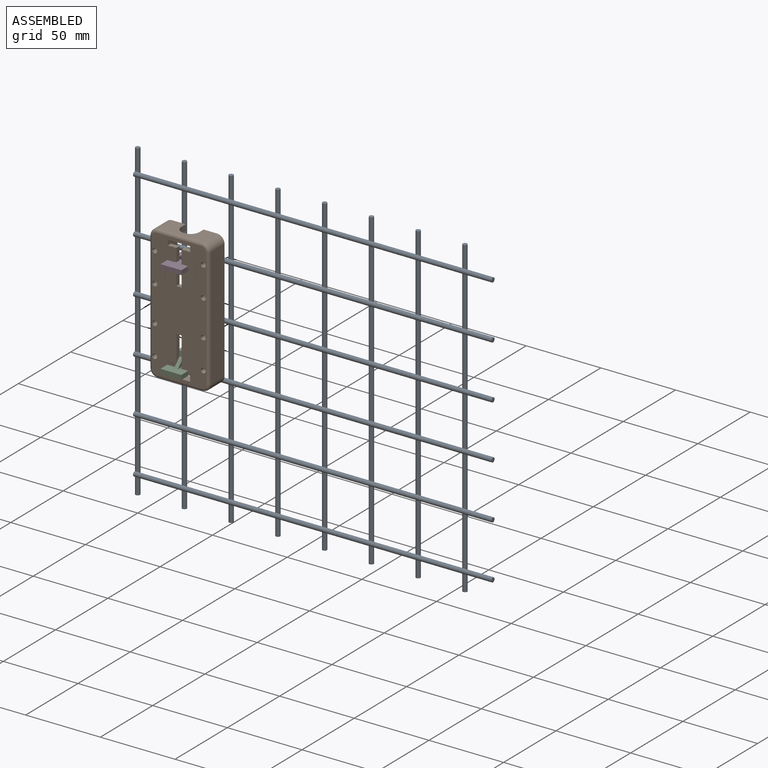
[diagram: assembled view]
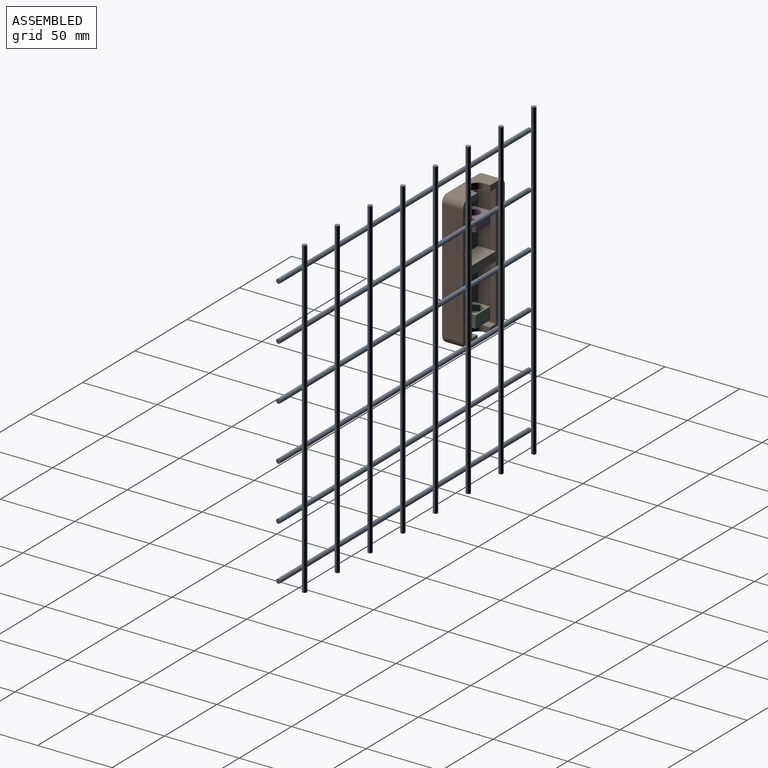
[diagram: assembled view, second angle]
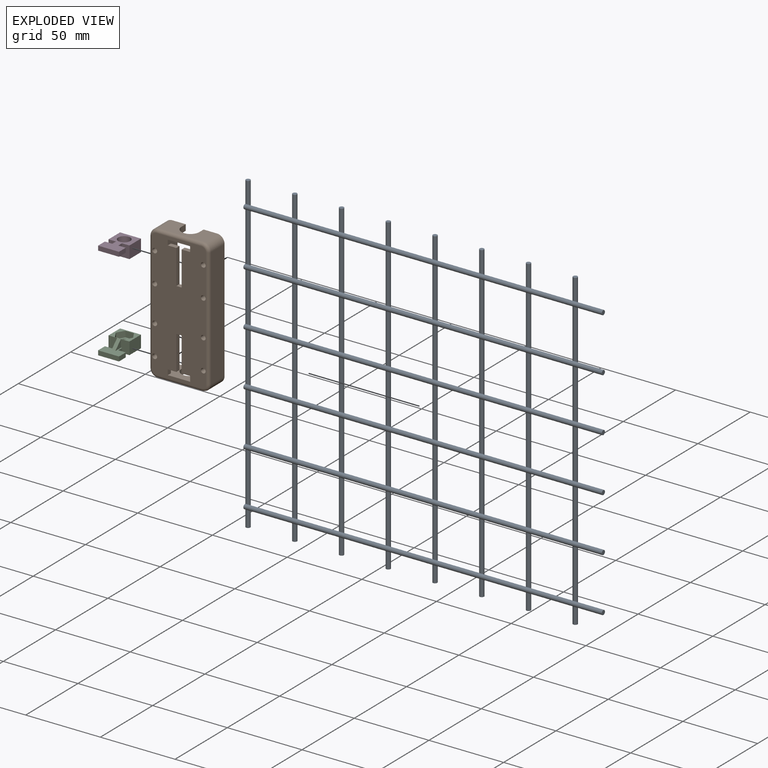
[diagram: exploded view]
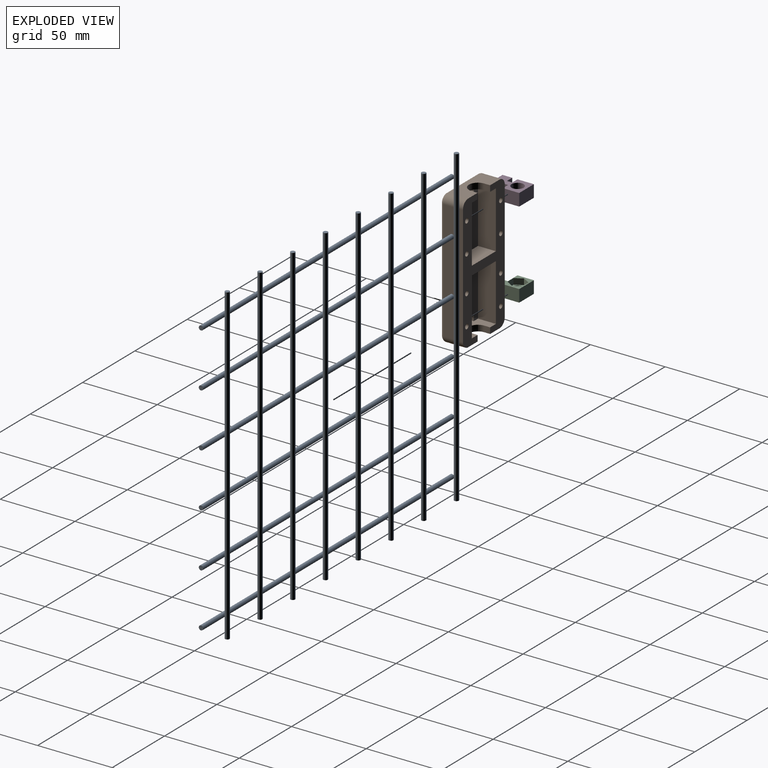
[diagram: exploded view, second angle]
ASSEMBLY  parts=4 mates=4
PART A: 42 faces, bbox 241.5x6x210 mm
  f0: cylinder r=1.5mm len=210mm, axis (0,0,-1), area 1978.9mm2, adj f1,f2,f3,f4,f5,f6,f7,f8
  f1: plane 3x3mm, normal (0,0,1), area 7.1mm2, adj f0
  f2: plane 3x3mm, normal (0,0,-1), area 7.1mm2, adj f0
  f3: cylinder r=1.5mm len=240mm, axis (-1,0,0), area 2261.2mm2, adj f0,f9,f15,f18,f21,f24,f27,f30
  f4: cylinder r=1.5mm len=240mm, axis (-1,0,0), area 2261.2mm2, adj f0,f10,f15,f18,f21,f24,f27,f30
  f5: cylinder r=1.5mm len=240mm, axis (-1,0,0), area 2261.2mm2, adj f0,f11,f15,f18,f21,f24,f27,f30
  f6: cylinder r=1.5mm len=240mm, axis (-1,0,0), area 2261.2mm2, adj f0,f12,f15,f18,f21,f24,f27,f30
  f7: cylinder r=1.5mm len=240mm, axis (-1,0,0), area 2261.2mm2, adj f0,f13,f15,f18,f21,f24,f27,f30
  f8: cylinder r=1.5mm len=240mm, axis (-1,0,0), area 2261.2mm2, adj f0,f14,f15,f18,f21,f24,f27,f30
  f9: plane 3x2.99mm, normal (-1,0,0), area 7.1mm2, adj f0,f3
  f10: plane 3x2.99mm, normal (-1,0,0), area 7.1mm2, adj f0,f4
  f11: plane 3x2.99mm, normal (-1,0,0), area 7.1mm2, adj f0,f5
  f12: plane 3x2.99mm, normal (-1,0,0), area 7.1mm2, adj f0,f6
  f13: plane 3x2.99mm, normal (-1,0,0), area 7.1mm2, adj f0,f7
  f14: plane 3x2.99mm, normal (-1,0,0), area 7.1mm2, adj f0,f8
  f15: cylinder r=1.5mm len=210mm, axis (0,0,-1), area 1978.6mm2, adj f3,f4,f5,f6,f7,f8,f16,f17
  f16: plane 3x3mm, normal (0,0,1), area 7.1mm2, adj f15
  f17: plane 3x3mm, normal (0,0,-1), area 7.1mm2, adj f15
  f18: cylinder r=1.5mm len=210mm, axis (0,0,-1), area 1978.6mm2, adj f3,f4,f5,f6,f7,f8,f19,f20
  f19: plane 3x3mm, normal (0,0,1), area 7.1mm2, adj f18
  f20: plane 3x3mm, normal (0,0,-1), area 7.1mm2, adj f18
  f21: cylinder r=1.5mm len=210mm, axis (0,0,-1), area 1978.6mm2, adj f3,f4,f5,f6,f7,f8,f22,f23
  f22: plane 3x3mm, normal (0,0,1), area 7.1mm2, adj f21
  f23: plane 3x3mm, normal (0,0,-1), area 7.1mm2, adj f21
  f24: cylinder r=1.5mm len=210mm, axis (0,0,-1), area 1978.6mm2, adj f3,f4,f5,f6,f7,f8,f25,f26
  f25: plane 3x3mm, normal (0,0,1), area 7.1mm2, adj f24
  f26: plane 3x3mm, normal (0,0,-1), area 7.1mm2, adj f24
  f27: cylinder r=1.5mm len=210mm, axis (0,0,-1), area 1978.6mm2, adj f3,f4,f5,f6,f7,f8,f28,f29
  f28: plane 3x3mm, normal (0,0,1), area 7.1mm2, adj f27
  f29: plane 3x3mm, normal (0,0,-1), area 7.1mm2, adj f27
  f30: cylinder r=1.5mm len=210mm, axis (0,0,-1), area 1978.6mm2, adj f3,f4,f5,f6,f7,f8,f31,f32
  f31: plane 3x3mm, normal (0,0,1), area 7.1mm2, adj f30
  f32: plane 3x3mm, normal (0,0,-1), area 7.1mm2, adj f30
  f33: cylinder r=1.5mm len=210mm, axis (0,0,-1), area 1978.6mm2, adj f3,f4,f5,f6,f7,f8,f34,f35
  f34: plane 3x3mm, normal (0,0,1), area 7.1mm2, adj f33
  f35: plane 3x3mm, normal (0,0,-1), area 7.1mm2, adj f33
  f36: plane 3x3mm, normal (1,0,0), area 7.1mm2, adj f3
  f37: plane 3x3mm, normal (1,0,0), area 7.1mm2, adj f4
  f38: plane 3x3mm, normal (1,0,0), area 7.1mm2, adj f5
  f39: plane 3x3mm, normal (1,0,0), area 7.1mm2, adj f6
  f40: plane 3x3mm, normal (1,0,0), area 7.1mm2, adj f7
  f41: plane 3x3mm, normal (1,0,0), area 7.1mm2, adj f8
PART B: 56 faces, bbox 40.8x15x90.8 mm
  f0: plane 30x13mm, normal (0,0,-1), area 285.5mm2, adj f3,f41,f42,f43,f45,f46,f52
  f1: plane 23x15mm, normal (0,0,1), area 216.5mm2, adj f3,f6,f18,f29,f30,f31,f32,f41
  f2: plane 23x15mm, normal (0,0,-1), area 216.5mm2, adj f3,f14,f15,f29,f34,f35,f36,f38
  f3: plane 90x40mm, normal (0,1,0), area 1670.2mm2, adj f0,f1,f2,f4,f5,f19,f20,f21
  f4: plane 30x13mm, normal (0,0,1), area 285.5mm2, adj f3,f38,f39,f40,f44,f47,f51
  f5: plane 80x13mm, normal (-1,0,0), area 1040mm2, adj f3,f44,f45,f48
  f6: plane 3.5x3mm, normal (1,0,0), area 10.5mm2, adj f1,f7,f29,f30
  f7: plane 5.75x3mm, normal (0,0,-1), area 17.2mm2, adj f6,f8,f29,f30
  f8: plane 23x3mm, normal (1,0,0), area 69mm2, adj f7,f9,f29,f30
  f9: plane 3.5x3mm, normal (0,0,-1), area 10.5mm2, adj f8,f10,f29,f30
  f10: plane 23x3mm, normal (-1,0,0), area 69mm2, adj f9,f11,f29,f30
  f11: plane 5.75x3mm, normal (0,0,-1), area 17.2mm2, adj f10,f18,f29,f30
  f12: plane 23x3mm, normal (1,0,0), area 69mm2, adj f13,f27,f29,f34
  f13: plane 5.75x3mm, normal (0,0,1), area 17.2mm2, adj f12,f14,f29,f34
  f14: plane 3.5x3mm, normal (1,0,0), area 10.5mm2, adj f2,f13,f29,f34
  f15: plane 3.5x3mm, normal (-1,0,0), area 10.5mm2, adj f2,f16,f29,f34
  f16: plane 5.75x3mm, normal (0,0,1), area 17.2mm2, adj f15,f17,f29,f34
  f17: plane 23x3mm, normal (-1,0,0), area 69mm2, adj f16,f27,f29,f34
  f18: plane 3.5x3mm, normal (-1,0,0), area 10.5mm2, adj f1,f11,f29,f30
  f19: cylinder r=1.6mm len=15mm, axis (0,1,0), area 150.8mm2, adj f3,f29
  f20: cylinder r=1.6mm len=15mm, axis (0,1,0), area 150.8mm2, adj f3,f29
  f21: cylinder r=1.6mm len=15mm, axis (0,1,0), area 150.8mm2, adj f3,f29
  f22: cylinder r=1.6mm len=15mm, axis (0,1,0), area 150.8mm2, adj f3,f29
  f23: cylinder r=1.6mm len=15mm, axis (0,1,0), area 150.8mm2, adj f3,f29
  f24: cylinder r=1.6mm len=15mm, axis (0,1,0), area 150.8mm2, adj f3,f29
  f25: cylinder r=1.6mm len=15mm, axis (0,1,0), area 150.8mm2, adj f3,f29
  f26: cylinder r=1.6mm len=15mm, axis (0,1,0), area 150.8mm2, adj f3,f29
  f27: plane 3.5x3mm, normal (0,0,1), area 10.5mm2, adj f12,f17,f29,f34
  f28: plane 80x13mm, normal (1,0,0), area 1040mm2, adj f3,f46,f47,f55
  f29: plane 86x36mm, normal (0,-1,0), area 2757.9mm2, adj f1,f2,f6,f7,f8,f9,f10,f11
  f30: plane 38x23mm, normal (0,1,0), area 741mm2, adj f1,f6,f7,f8,f9,f10,f11,f18
  f31: plane 38x12mm, normal (-1,0,0), area 456mm2, adj f1,f3,f30,f33
  f32: plane 38x12mm, normal (1,0,0), area 456mm2, adj f1,f3,f30,f33
  f33: plane 23x12mm, normal (0,0,-1), area 276mm2, adj f3,f30,f31,f32
  f34: plane 38x23mm, normal (0,1,0), area 741mm2, adj f2,f12,f13,f14,f15,f16,f17,f27
  f35: plane 38x12mm, normal (1,0,0), area 456mm2, adj f2,f3,f34,f37
  f36: plane 38x12mm, normal (-1,0,0), area 456mm2, adj f2,f3,f34,f37
  f37: plane 23x12mm, normal (0,0,1), area 276mm2, adj f3,f34,f35,f36
  f38: cylinder r=6mm len=12mm, axis (0,0,1), area 75.4mm2, adj f2,f4,f39,f40
  f39: plane 4x4mm, normal (1,0,0), area 16mm2, adj f2,f3,f4,f38
  f40: plane 4x4mm, normal (-1,0,0), area 16mm2, adj f2,f3,f4,f38
  f41: cylinder r=6mm len=12mm, axis (0,0,-1), area 75.4mm2, adj f0,f1,f42,f43
  f42: plane 4x4mm, normal (-1,0,0), area 16mm2, adj f0,f1,f3,f41
  f43: plane 4x4mm, normal (1,0,0), area 16mm2, adj f0,f1,f3,f41
  f44: cylinder r=5mm len=13mm, axis (0,-1,0), area 102.1mm2, adj f3,f4,f5,f49
  f45: cylinder r=5mm len=13mm, axis (0,1,0), area 102.1mm2, adj f0,f3,f5,f50
  f46: cylinder r=5mm len=13mm, axis (0,-1,0), area 102.1mm2, adj f0,f3,f28,f54
  f47: cylinder r=5mm len=13mm, axis (0,1,0), area 102.1mm2, adj f3,f4,f28,f53
  f48: cylinder r=2mm len=80mm, axis (0,0,1), area 251.3mm2, adj f5,f29,f49,f50
  f49: torus R=3mm, axis (0,-1,0), area 21.1mm2, adj f29,f44,f48,f51
  f50: torus R=3mm, axis (0,-1,0), area 21.1mm2, adj f29,f45,f48,f52
  f51: cylinder r=2mm len=30mm, axis (1,0,0), area 94.2mm2, adj f4,f29,f49,f53
  f52: cylinder r=2mm len=30mm, axis (-1,0,0), area 94.2mm2, adj f0,f29,f50,f54
  f53: torus R=3mm, axis (0,-1,0), area 21.1mm2, adj f29,f47,f51,f55
  f54: torus R=3mm, axis (0,-1,0), area 21.1mm2, adj f29,f46,f52,f55
  f55: cylinder r=2mm len=80mm, axis (0,0,-1), area 251.3mm2, adj f28,f29,f53,f54
PART C: 26 faces, bbox 14x21x8.2 mm
  f0: plane 14x11mm, normal (0,0,-1), area 67.4mm2, adj f3,f4,f6,f9,f10,f14,f20,f21
  f1: cylinder r=4.06mm len=8.12mm, axis (0,0,-1), area 107.9mm2, adj f5,f19
  f2: plane 14x10mm, normal (0,0,-1), area 91.9mm2, adj f6,f7,f8,f9,f11,f12,f13,f14
  f3: plane 11x8.23mm, normal (-1,0,0), area 90.5mm2, adj f0,f5,f9,f10
  f4: plane 11x8.23mm, normal (1,0,0), area 90.5mm2, adj f0,f5,f6,f10
  f5: plane 21x14mm, normal (0,0,1), area 207.3mm2, adj f1,f3,f4,f6,f7,f8,f9,f10
  f6: plane 8.23x5.75mm, normal (0,-1,0), area 45.1mm2, adj f0,f2,f4,f5,f13,f16
  f7: plane 6.5x3mm, normal (-1,0,0), area 19.5mm2, adj f2,f5,f11,f17
  f8: plane 6.5x3mm, normal (1,0,0), area 19.5mm2, adj f2,f5,f11,f15
  f9: plane 8.23x5.75mm, normal (0,-1,0), area 45.1mm2, adj f0,f2,f3,f5,f12,f18
  f10: plane 14x8.23mm, normal (0,1,0), area 115.2mm2, adj f0,f3,f4,f5
  f11: plane 14x3mm, normal (0,-1,0), area 42mm2, adj f2,f5,f7,f8
  f12: plane 5.23x5.23mm, normal (-1,0,0), area 13.7mm2, adj f2,f9,f14
  f13: plane 5.23x5.23mm, normal (1,0,0), area 13.7mm2, adj f2,f6,f14
  f14: plane 5.23x5.23mm, normal (0,-0.71,-0.71), area 18.5mm2, adj f0,f2,f12,f13
  f15: plane 5x3mm, normal (0,1,0), area 15mm2, adj f2,f5,f8,f16
  f16: plane 3.5x3mm, normal (1,0,0), area 10.5mm2, adj f2,f5,f6,f15
  f17: plane 5x3mm, normal (0,1,0), area 15mm2, adj f2,f5,f7,f18
  f18: plane 3.5x3mm, normal (-1,0,0), area 10.5mm2, adj f2,f5,f9,f17
  f19: plane 11.55x10mm, normal (0,0,-1), area 34.9mm2, adj f1,f20,f21,f22,f23,f24,f25
  f20: plane 5x4mm, normal (0.87,-0.5,0), area 23.1mm2, adj f0,f19,f21,f25
  f21: plane 5.77x4mm, normal (0,-1,0), area 23.1mm2, adj f0,f19,f20,f22
  f22: plane 5x4mm, normal (-0.87,-0.5,0), area 23.1mm2, adj f0,f19,f21,f23
  f23: plane 5x4mm, normal (-0.87,0.5,0), area 23.1mm2, adj f0,f19,f22,f24
  f24: plane 5.77x4mm, normal (0,1,0), area 23.1mm2, adj f0,f19,f23,f25
  f25: plane 5x4mm, normal (0.87,0.5,0), area 23.1mm2, adj f0,f19,f20,f24
PART D: same geometry as C
PLACE A t=(-108.07,-38.52,46.68)mm
PLACE B t=(-66.79,-43.01,71.23)mm
PLACE C rot(axis=(0,-1,0),180deg) t=(-30.46,-44.01,77.74)mm
PLACE D t=(-104.12,-44.01,56.11)mm
MATE planar C.f13 <-> B.f8  axis (-1,0,0) through (-68.54,-56.75,38.49)mm
MATE planar D.f12 <-> B.f12  axis (-1,0,0) through (-68.54,-56.75,95.36)mm
MATE planar D.f6 <-> B.f34  axis (0,-1,0) through (-63.04,-55.01,95.86)mm
MATE planar C.f9 <-> B.f30  axis (0,-1,0) through (-63.04,-55.01,37.99)mm
